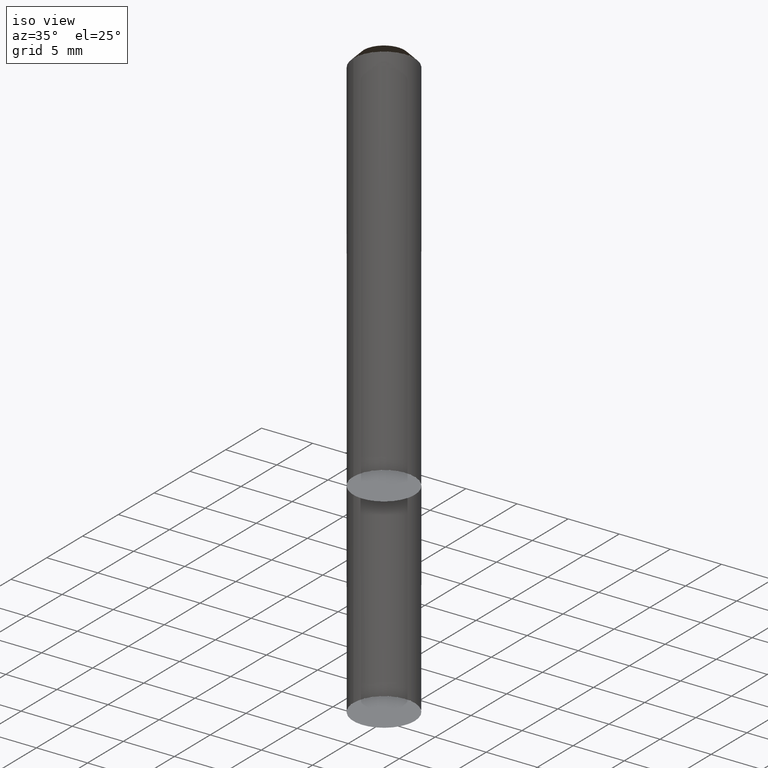
[diagram: clean part render]
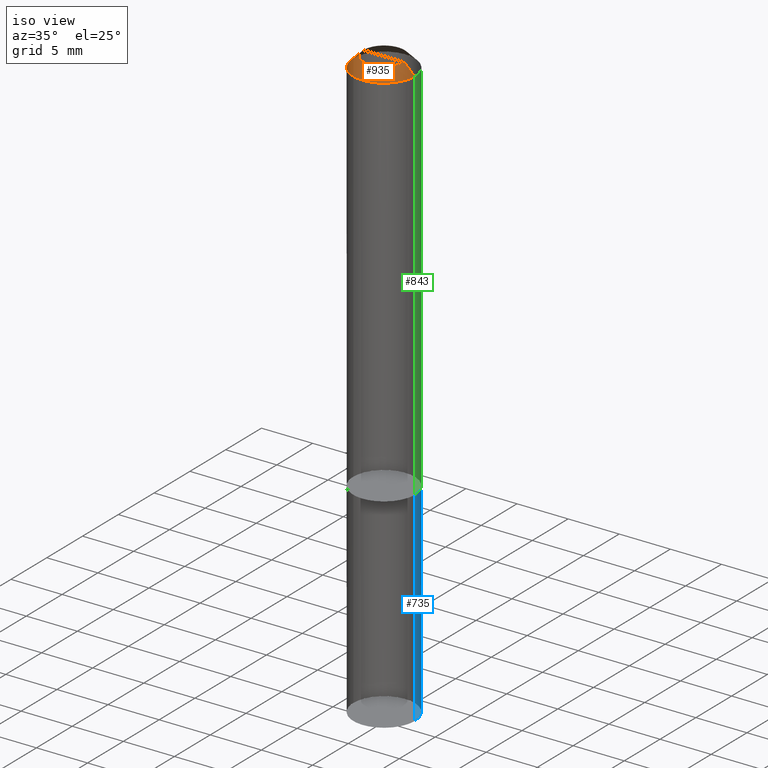
[diagram: same view with three faces highlighted in distinct colors, each labeled with its STEP entity id]
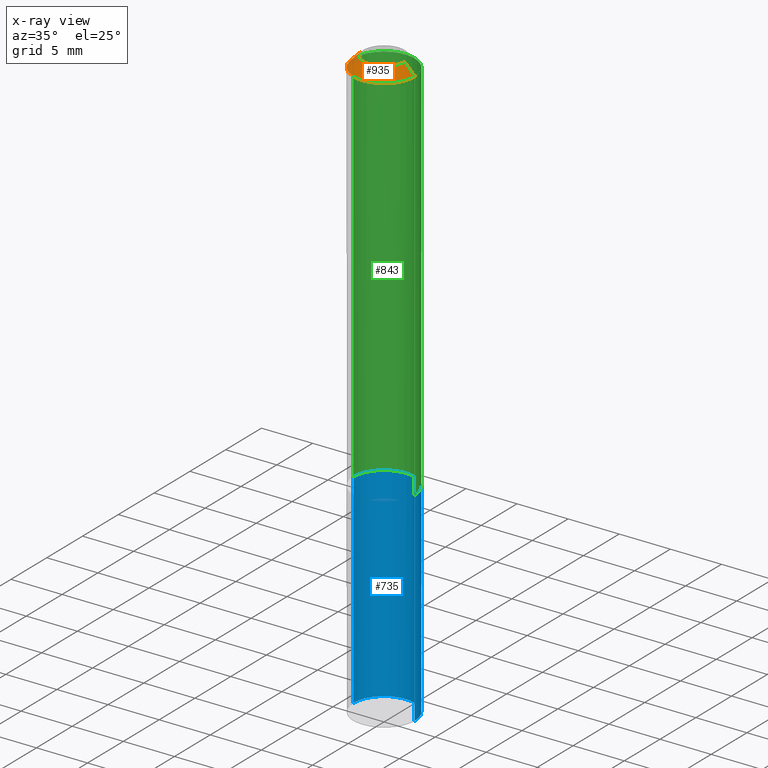
[diagram: x-ray of the same camera — body ghosted, the three highlighted faces saturated]
A machine part, iso view with three faces highlighted in distinct colors.
The next image is the same camera in x-ray (body ghosted, the three faces saturated) — at least one of them is partly hidden behind the body in this view.
Their STEP definitions:

[orange] entity #935 — the highlighted face is a freeform B-spline surface patch.
#678=CARTESIAN_POINT('',(3.0,0.0,37.0));
#682=CARTESIAN_POINT('',(-3.0,0.0,37.0));
#683=CARTESIAN_POINT('',(2.0,0.0,38.0));
#687=CARTESIAN_POINT('',(-2.0,0.0,38.0));
#689=CARTESIAN_POINT('',(-3.0,-3.0,37.0));
#690=CARTESIAN_POINT('',(0.0,-3.0,37.0));
#691=CARTESIAN_POINT('',(3.0,-3.0,37.0));
#692=CARTESIAN_POINT('',(-2.0,-2.0,38.0));
#693=CARTESIAN_POINT('',(0.0,-2.0,38.0));
#694=CARTESIAN_POINT('',(2.0,-2.0,38.0));
#916=(
BOUNDED_SURFACE()
B_SPLINE_SURFACE(1,2,(
(#682,#689,#690,#691,#678),
(#687,#692,#693,#694,#683)
), .UNSPECIFIED.,.F.,.F.,.F.)
B_SPLINE_SURFACE_WITH_KNOTS((2,2),(3,2,3),(
0.0,1.0),(
0.0,0.5,1.0), .UNSPECIFIED.)
GEOMETRIC_REPRESENTATION_ITEM()
RATIONAL_B_SPLINE_SURFACE(((1.0,0.707106781187,1.0,0.707106781187,1.0),
(1.0,0.707106781187,1.0,0.707106781187,1.0)
))
REPRESENTATION_ITEM('')
SURFACE()
);
#917=(
BOUNDED_CURVE()
B_SPLINE_CURVE(2,(#678,#691,#690,#689,#682),.UNSPECIFIED.,.F.,.F.)
B_SPLINE_CURVE_WITH_KNOTS((3,2,3),
(0.0,0.5,1.0),.UNSPECIFIED.)
CURVE()
GEOMETRIC_REPRESENTATION_ITEM()
RATIONAL_B_SPLINE_CURVE((1.0,0.707106781187,1.0,0.707106781187,1.0))
REPRESENTATION_ITEM('')
);
#918=(
BOUNDED_CURVE()
B_SPLINE_CURVE(1,(#682,#687),.UNSPECIFIED.,.F.,.F.)
B_SPLINE_CURVE_WITH_KNOTS((2,2),
(0.0,1.0),.UNSPECIFIED.)
CURVE()
GEOMETRIC_REPRESENTATION_ITEM()
RATIONAL_B_SPLINE_CURVE((1.0,1.0))
REPRESENTATION_ITEM('')
);
#919=(
BOUNDED_CURVE()
B_SPLINE_CURVE(2,(#687,#692,#693,#694,#683),.UNSPECIFIED.,.F.,.F.)
B_SPLINE_CURVE_WITH_KNOTS((3,2,3),
(0.0,0.5,1.0),.UNSPECIFIED.)
CURVE()
GEOMETRIC_REPRESENTATION_ITEM()
RATIONAL_B_SPLINE_CURVE((1.0,0.707106781187,1.0,0.707106781187,1.0))
REPRESENTATION_ITEM('')
);
#920=(
BOUNDED_CURVE()
B_SPLINE_CURVE(1,(#683,#678),.UNSPECIFIED.,.F.,.F.)
B_SPLINE_CURVE_WITH_KNOTS((2,2),
(0.0,1.0),.UNSPECIFIED.)
CURVE()
GEOMETRIC_REPRESENTATION_ITEM()
RATIONAL_B_SPLINE_CURVE((1.0,1.0))
REPRESENTATION_ITEM('')
);
#921=VERTEX_POINT('',#678);
#922=VERTEX_POINT('',#682);
#923=VERTEX_POINT('',#683);
#924=VERTEX_POINT('',#687);
#925=EDGE_CURVE('',#921,#922,#917,.T.);
#926=EDGE_CURVE('',#922,#924,#918,.T.);
#927=EDGE_CURVE('',#924,#923,#919,.T.);
#928=EDGE_CURVE('',#923,#921,#920,.T.);
#929=ORIENTED_EDGE('',*,*,#925,.T.);
#930=ORIENTED_EDGE('',*,*,#926,.T.);
#931=ORIENTED_EDGE('',*,*,#927,.T.);
#932=ORIENTED_EDGE('',*,*,#928,.T.);
#933=EDGE_LOOP('',(#929,#930,#931,#932));
#934=FACE_OUTER_BOUND('',#933,.T.);
#935=ADVANCED_FACE('',(#934),#916,.T.);

[blue] entity #735 — the highlighted face is a freeform B-spline surface patch.
#410=CARTESIAN_POINT('',(0.0,3.0,-20.0));
#663=CARTESIAN_POINT('',(3.0,0.0,-20.0));
#664=CARTESIAN_POINT('',(3.0,3.0,-20.0));
#665=CARTESIAN_POINT('',(-3.0,3.0,-20.0));
#666=CARTESIAN_POINT('',(-3.0,0.0,-20.0));
#667=CARTESIAN_POINT('',(3.0,0.0,0.0));
#668=CARTESIAN_POINT('',(3.0,3.0,0.0));
#669=CARTESIAN_POINT('',(0.0,3.0,0.0));
#670=CARTESIAN_POINT('',(-3.0,3.0,0.0));
#671=CARTESIAN_POINT('',(-3.0,0.0,0.0));
#716=(
BOUNDED_SURFACE()
B_SPLINE_SURFACE(1,2,(
(#663,#664,#410,#665,#666),
(#667,#668,#669,#670,#671)
), .UNSPECIFIED.,.F.,.F.,.F.)
B_SPLINE_SURFACE_WITH_KNOTS((2,2),(3,2,3),(
0.0,1.0),(
0.0,0.5,1.0), .UNSPECIFIED.)
GEOMETRIC_REPRESENTATION_ITEM()
RATIONAL_B_SPLINE_SURFACE(((1.0,0.707106781187,1.0,0.707106781187,1.0),
(1.0,0.707106781187,1.0,0.707106781187,1.0)
))
REPRESENTATION_ITEM('')
SURFACE()
);
#717=(
BOUNDED_CURVE()
B_SPLINE_CURVE(2,(#666,#665,#410,#664,#663),.UNSPECIFIED.,.F.,.F.)
B_SPLINE_CURVE_WITH_KNOTS((3,2,3),
(0.0,0.5,1.0),.UNSPECIFIED.)
CURVE()
GEOMETRIC_REPRESENTATION_ITEM()
RATIONAL_B_SPLINE_CURVE((1.0,0.707106781187,1.0,0.707106781187,1.0))
REPRESENTATION_ITEM('')
);
#718=(
BOUNDED_CURVE()
B_SPLINE_CURVE(1,(#663,#667),.UNSPECIFIED.,.F.,.F.)
B_SPLINE_CURVE_WITH_KNOTS((2,2),
(0.0,1.0),.UNSPECIFIED.)
CURVE()
GEOMETRIC_REPRESENTATION_ITEM()
RATIONAL_B_SPLINE_CURVE((1.0,1.0))
REPRESENTATION_ITEM('')
);
#719=(
BOUNDED_CURVE()
B_SPLINE_CURVE(2,(#667,#668,#669,#670,#671),.UNSPECIFIED.,.F.,.F.)
B_SPLINE_CURVE_WITH_KNOTS((3,2,3),
(0.0,0.5,1.0),.UNSPECIFIED.)
CURVE()
GEOMETRIC_REPRESENTATION_ITEM()
RATIONAL_B_SPLINE_CURVE((1.0,0.707106781187,1.0,0.707106781187,1.0))
REPRESENTATION_ITEM('')
);
#720=(
BOUNDED_CURVE()
B_SPLINE_CURVE(1,(#671,#666),.UNSPECIFIED.,.F.,.F.)
B_SPLINE_CURVE_WITH_KNOTS((2,2),
(0.0,1.0),.UNSPECIFIED.)
CURVE()
GEOMETRIC_REPRESENTATION_ITEM()
RATIONAL_B_SPLINE_CURVE((1.0,1.0))
REPRESENTATION_ITEM('')
);
#721=VERTEX_POINT('',#663);
#722=VERTEX_POINT('',#666);
#723=VERTEX_POINT('',#667);
#724=VERTEX_POINT('',#671);
#725=EDGE_CURVE('',#722,#721,#717,.T.);
#726=EDGE_CURVE('',#721,#723,#718,.T.);
#727=EDGE_CURVE('',#723,#724,#719,.T.);
#728=EDGE_CURVE('',#724,#722,#720,.T.);
#729=ORIENTED_EDGE('',*,*,#725,.T.);
#730=ORIENTED_EDGE('',*,*,#726,.T.);
#731=ORIENTED_EDGE('',*,*,#727,.T.);
#732=ORIENTED_EDGE('',*,*,#728,.T.);
#733=EDGE_LOOP('',(#729,#730,#731,#732));
#734=FACE_OUTER_BOUND('',#733,.T.);
#735=ADVANCED_FACE('',(#734),#716,.T.);

[green] entity #843 — the highlighted face is a freeform B-spline surface patch.
#667=CARTESIAN_POINT('',(3.0,0.0,0.0));
#668=CARTESIAN_POINT('',(3.0,3.0,0.0));
#669=CARTESIAN_POINT('',(0.0,3.0,0.0));
#670=CARTESIAN_POINT('',(-3.0,3.0,0.0));
#671=CARTESIAN_POINT('',(-3.0,0.0,0.0));
#678=CARTESIAN_POINT('',(3.0,0.0,37.0));
#679=CARTESIAN_POINT('',(3.0,3.0,37.0));
#680=CARTESIAN_POINT('',(0.0,3.0,37.0));
#681=CARTESIAN_POINT('',(-3.0,3.0,37.0));
#682=CARTESIAN_POINT('',(-3.0,0.0,37.0));
#824=(
BOUNDED_SURFACE()
B_SPLINE_SURFACE(1,2,(
(#667,#668,#669,#670,#671),
(#678,#679,#680,#681,#682)
), .UNSPECIFIED.,.F.,.F.,.F.)
B_SPLINE_SURFACE_WITH_KNOTS((2,2),(3,2,3),(
0.0,1.0),(
0.0,0.5,1.0), .UNSPECIFIED.)
GEOMETRIC_REPRESENTATION_ITEM()
RATIONAL_B_SPLINE_SURFACE(((1.0,0.707106781187,1.0,0.707106781187,1.0),
(1.0,0.707106781187,1.0,0.707106781187,1.0)
))
REPRESENTATION_ITEM('')
SURFACE()
);
#825=(
BOUNDED_CURVE()
B_SPLINE_CURVE(2,(#671,#670,#669,#668,#667),.UNSPECIFIED.,.F.,.F.)
B_SPLINE_CURVE_WITH_KNOTS((3,2,3),
(0.0,0.5,1.0),.UNSPECIFIED.)
CURVE()
GEOMETRIC_REPRESENTATION_ITEM()
RATIONAL_B_SPLINE_CURVE((1.0,0.707106781187,1.0,0.707106781187,1.0))
REPRESENTATION_ITEM('')
);
#826=(
BOUNDED_CURVE()
B_SPLINE_CURVE(1,(#667,#678),.UNSPECIFIED.,.F.,.F.)
B_SPLINE_CURVE_WITH_KNOTS((2,2),
(0.0,1.0),.UNSPECIFIED.)
CURVE()
GEOMETRIC_REPRESENTATION_ITEM()
RATIONAL_B_SPLINE_CURVE((1.0,1.0))
REPRESENTATION_ITEM('')
);
#827=(
BOUNDED_CURVE()
B_SPLINE_CURVE(2,(#678,#679,#680,#681,#682),.UNSPECIFIED.,.F.,.F.)
B_SPLINE_CURVE_WITH_KNOTS((3,2,3),
(0.0,0.5,1.0),.UNSPECIFIED.)
CURVE()
GEOMETRIC_REPRESENTATION_ITEM()
RATIONAL_B_SPLINE_CURVE((1.0,0.707106781187,1.0,0.707106781187,1.0))
REPRESENTATION_ITEM('')
);
#828=(
BOUNDED_CURVE()
B_SPLINE_CURVE(1,(#682,#671),.UNSPECIFIED.,.F.,.F.)
B_SPLINE_CURVE_WITH_KNOTS((2,2),
(0.0,1.0),.UNSPECIFIED.)
CURVE()
GEOMETRIC_REPRESENTATION_ITEM()
RATIONAL_B_SPLINE_CURVE((1.0,1.0))
REPRESENTATION_ITEM('')
);
#829=VERTEX_POINT('',#667);
#830=VERTEX_POINT('',#671);
#831=VERTEX_POINT('',#678);
#832=VERTEX_POINT('',#682);
#833=EDGE_CURVE('',#830,#829,#825,.T.);
#834=EDGE_CURVE('',#829,#831,#826,.T.);
#835=EDGE_CURVE('',#831,#832,#827,.T.);
#836=EDGE_CURVE('',#832,#830,#828,.T.);
#837=ORIENTED_EDGE('',*,*,#833,.T.);
#838=ORIENTED_EDGE('',*,*,#834,.T.);
#839=ORIENTED_EDGE('',*,*,#835,.T.);
#840=ORIENTED_EDGE('',*,*,#836,.T.);
#841=EDGE_LOOP('',(#837,#838,#839,#840));
#842=FACE_OUTER_BOUND('',#841,.T.);
#843=ADVANCED_FACE('',(#842),#824,.T.);